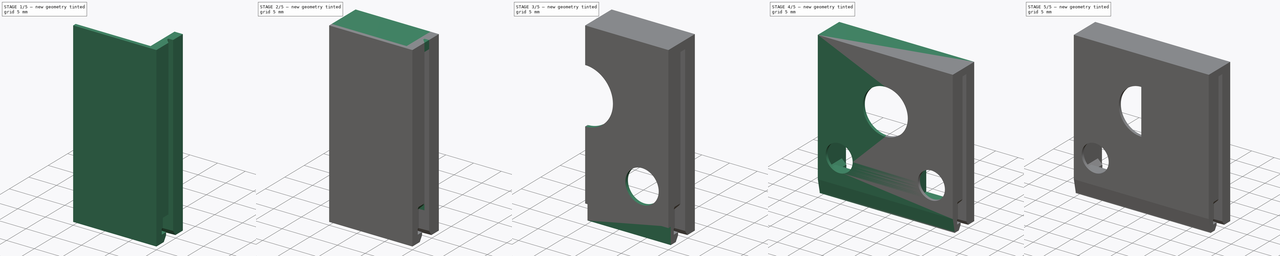
[diagram: build sequence overview — one tinted view per stage of 5, left to right]
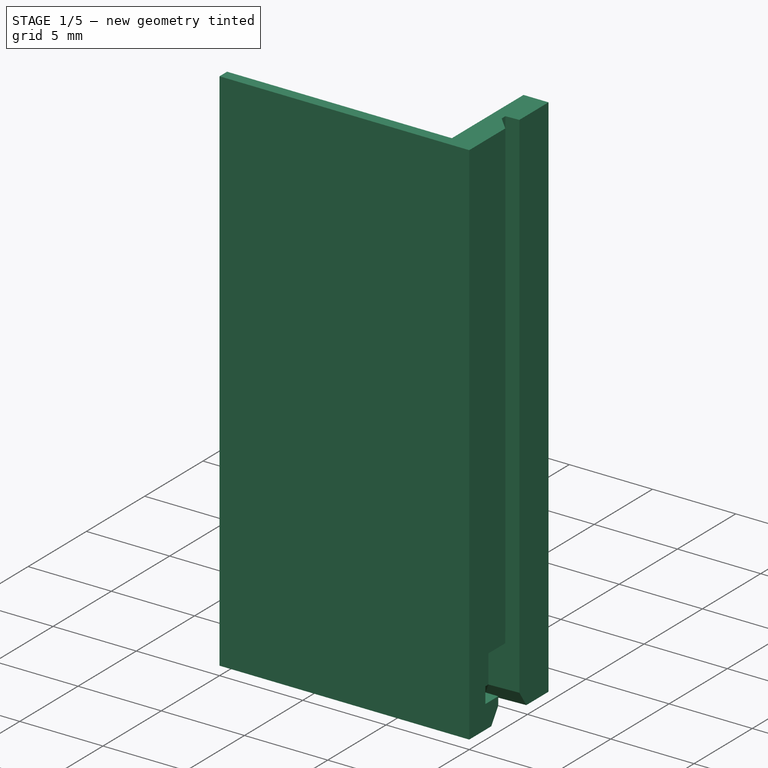
[diagram: stage 1 of 5 — iso view after this stage's code; geometry added in this stage tinted green]
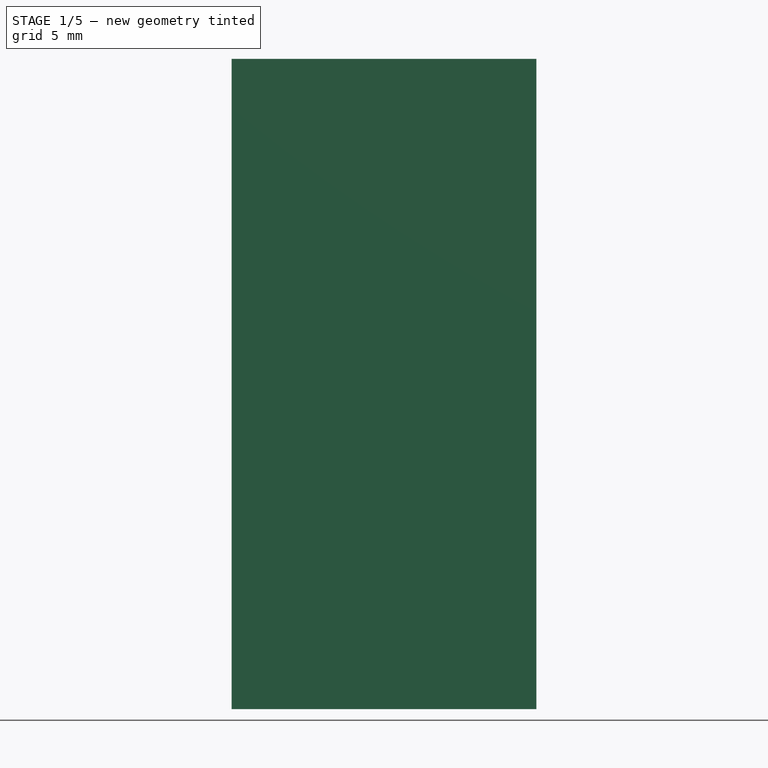
[diagram: stage 1 of 5 — front view after this stage's code; geometry added in this stage tinted green]
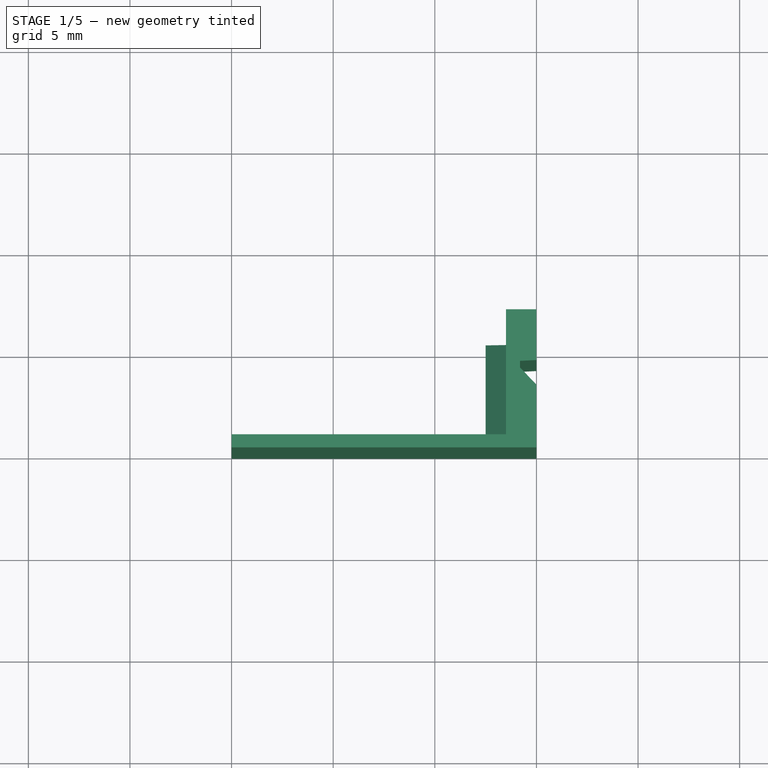
[diagram: stage 1 of 5 — top view after this stage's code; geometry added in this stage tinted green]
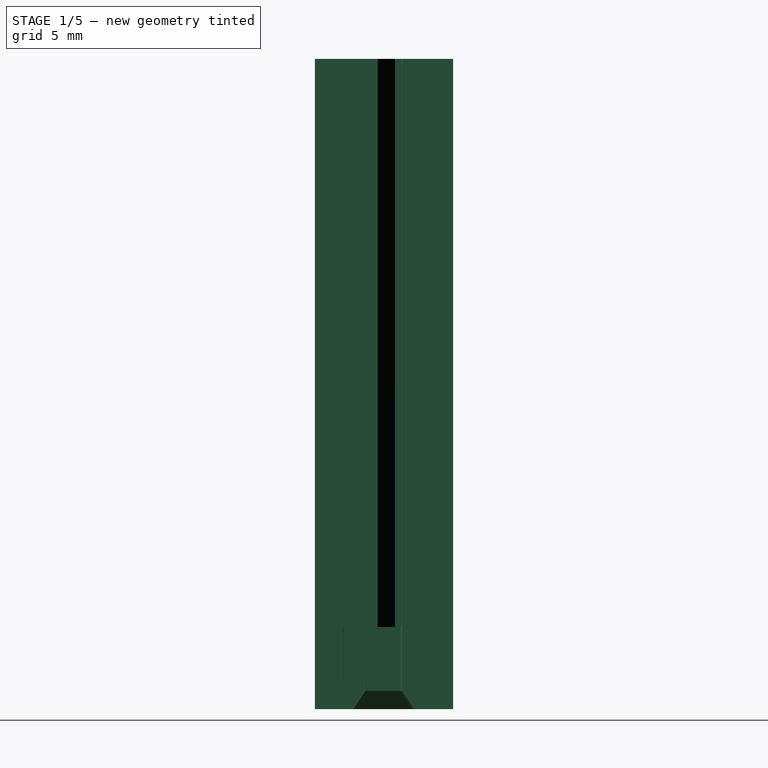
[diagram: stage 1 of 5 — right view after this stage's code; geometry added in this stage tinted green]
FCSTD DOCUMENT  (FreeCAD 1.0R39285 (Git))
Label: fw-ce-case
License: All rights reserved
LicenseURL: http://en.wikipedia.org/wiki/All_rights_reserved
objects: Part::Feature×33, App::Part×22, Sketcher::SketchObject×18, PartDesign::Pocket×10, PartDesign::Pad×9, PartDesign::Fillet×5, PartDesign::Chamfer×3, PartDesign::Plane×2, PartDesign::Mirrored×1, PartDesign::Body×1
note: 155 computed .brp shape members not serialized (recipe doc carries the construction recipe); baked Part::Feature solids carry a one-line shape summary decoded from their .brp

FEATURE [Sketcher::SketchObject] Sketch
  ArcFitTolerance = 1e-06
  AttachmentSupport = -> [XY_Plane]
  FullyConstrained = true
  MakeInternals = false
  MapMode = 5
  sketch-geometry (10):
    g0: LineSegment StartX=15 StartY=0 StartZ=0 EndX=15 EndY=3.09 EndZ=0
    g1: LineSegment StartX=15 StartY=3.09 StartZ=0 EndX=14.19 EndY=3.94 EndZ=0
    g2: LineSegment StartX=14.19 StartY=3.94 StartZ=0 EndX=14.19 EndY=4.26 EndZ=0
    g3: LineSegment StartX=14.19 StartY=4.26 StartZ=0 EndX=15 EndY=4.3 EndZ=0
    g4: LineSegment StartX=15 StartY=4.3 StartZ=0 EndX=15 EndY=6.8 EndZ=0
    g5: LineSegment StartX=15 StartY=6.8 StartZ=0 EndX=13.5 EndY=6.8 EndZ=0
    g6: LineSegment StartX=13.5 StartY=6.8 StartZ=0 EndX=13.5 EndY=0.65 EndZ=0
    g7: LineSegment StartX=13.5 StartY=0.65 StartZ=0 EndX=0 EndY=0.65 EndZ=0
    g8: LineSegment StartX=0 StartY=0 StartZ=0 EndX=15 EndY=0 EndZ=0
    g9: LineSegment StartX=0 StartY=0.65 StartZ=0 EndX=0 EndY=0 EndZ=0
  constraints (30):
    c: PointOnObject(g0,g-1)
    c: Coincident(g1,g0)
    c: Coincident(g2,g1)
    c: Vertical(g2)
    c: Coincident(g3,g2)
    c: Coincident(g5,g4)
    c: Horizontal(g5)
    c: Coincident(g6,g5)
    c: Vertical(g6)
    c: Coincident(g7,g6)
    c: PointOnObject(g7,g-2)
    c: Horizontal(g7)
    c: PointOnObject(g8,g-2)
    c: Coincident(g8,g0)
    c: Horizontal(g8)
    c: DistanceX(g5,g5) = 1.5
    c: DistanceX(g8,g8) = 15
    c: DistanceY(g-1,g0) = 3.09
    c: DistanceY(g-1,g1) = 3.94
    c: Perpendicular(g4,g8)
    c: PointOnObject(g0,g4)
    c: DistanceY(g-1,g2) = 4.26
    c: DistanceY(g-1,g3) = 4.3
    c: DistanceY(g-1,g4) = 6.8
    c: DistanceX(g-1,g1) = 14.19
    c: Vertical(g0)
    c: Coincident(g3,g4)
    c: DistanceY(g-1,g6) = 0.65
    c: Coincident(g9,g7)
    c: Coincident(g9,g8)
FEATURE [PartDesign::Pad] Pad
  Direction = (0,0,1)
  Length = 32
  Length2 = 10
  Profile = -> Sketch
  ReferenceAxis = -> Sketch [N_Axis]
  Suppressed = false
  Type = 0
FEATURE [Sketcher::SketchObject] Sketch001
  ArcFitTolerance = 1e-06
  AttachmentSupport = -> [XZ_Plane]
  ExternalGeometry = -> [Pad]
  FullyConstrained = false
  MakeInternals = false
  MapMode = 5
  Placement = pos=(0,0,0) rot=(1,0,0;1.5708rad)
  sketch-geometry (5):
    g0: LineSegment StartX=12.5 StartY=0 StartZ=0 EndX=12.5 EndY=4.5 EndZ=0
    g1: LineSegment StartX=12.5 StartY=4.5 StartZ=0 EndX=13.5 EndY=5.5 EndZ=0
    g2: LineSegment StartX=13.5 StartY=5.5 StartZ=0 EndX=15 EndY=5.5 EndZ=0
    g3: LineSegment StartX=15 StartY=5.5 StartZ=0 EndX=15 EndY=0 EndZ=0
    g4: LineSegment StartX=15 StartY=0 StartZ=0 EndX=12.5 EndY=0 EndZ=0
  constraints (13):
    c: Vertical(g0)
    c: Coincident(g1,g0)
    c: Coincident(g2,g1)
    c: PointOnObject(g2,g-3)
    c: Coincident(g3,g-3)
    c: Coincident(g4,g3)
    c: Horizontal(g4)
    c: Coincident(g3,g2)
    c: DistanceY(g-1,g2) = 5.5
    c: PointOnObject(g1,g-4)
    c: DistanceX(g-1,g0) = 12.5
    c: DistanceY(g-1,g0) = 4.5
    c: Coincident(g4,g0)
FEATURE [PartDesign::Pad] Pad001
  BaseFeature = -> Pad
  Direction = (0,-1,2e-16)
  Length = 5.5
  Length2 = 10
  Profile = -> Sketch001
  ReferenceAxis = -> Sketch001 [N_Axis]
  Reversed = true
  Suppressed = false
  Type = 0
FEATURE [PartDesign::Plane] DatumPlane
  AttachmentOffset = pos=(0,0,13.2) rot=(0,0,1;0rad)
  AttachmentSupport = -> [YZ_Plane]
  Length = 60.6771
  MapMode = 5
  Placement = pos=(13.2,0,0) rot=(0.57735,0.57735,0.57735;2.0944rad)
  ResizeMode = 0
  Width = 67.6771
FEATURE [Sketcher::SketchObject] Sketch002
  ArcFitTolerance = 1e-06
  AttachmentSupport = -> [DatumPlane]
  FullyConstrained = true
  MakeInternals = false
  MapMode = 5
  Placement = pos=(13.2,0,0) rot=(0.57735,0.57735,0.57735;2.0944rad)
  sketch-geometry (4):
    g0: LineSegment StartX=4.2 StartY=4.05 StartZ=0 EndX=1.4 EndY=4.05 EndZ=0
    g1: LineSegment StartX=1.4 StartY=4.05 StartZ=0 EndX=1.4 EndY=1.4 EndZ=0
    g2: LineSegment StartX=1.4 StartY=1.4 StartZ=0 EndX=4.2 EndY=1.4 EndZ=0
    g3: LineSegment StartX=4.2 StartY=1.4 StartZ=0 EndX=4.2 EndY=4.05 EndZ=0
  constraints (12):
    c: Coincident(g0,g1)
    c: Coincident(g1,g2)
    c: Coincident(g2,g3)
    c: Coincident(g3,g0)
    c: Horizontal(g0)
    c: Horizontal(g2)
    c: Vertical(g1)
    c: Vertical(g3)
    c: DistanceY(g-1,g0) = 4.05
    c: DistanceX(g2,g2) = 2.8
    c: DistanceY(g-1,g1) = 1.4
    c: DistanceX(g-1,g1) = 1.4
FEATURE [Sketcher::SketchObject] Sketch003
  ArcFitTolerance = 1e-06
  AttachmentSupport = -> [Pad001]
  ExternalGeometry = -> [Pad001]
  FullyConstrained = true
  MakeInternals = false
  MapMode = 5
  Placement = pos=(15,0,0) rot=(0.57735,0.57735,0.57735;2.0944rad)
  sketch-geometry (4):
    g0: LineSegment StartX=1.387 StartY=1.387 StartZ=0 EndX=4.3 EndY=1.387 EndZ=0
    g1: LineSegment StartX=4.3 StartY=1.387 StartZ=0 EndX=4.3 EndY=5.5 EndZ=0
    g2: LineSegment StartX=4.3 StartY=5.5 StartZ=0 EndX=1.387 EndY=5.5 EndZ=0
    g3: LineSegment StartX=1.387 StartY=5.5 StartZ=0 EndX=1.387 EndY=1.387 EndZ=0
  constraints (11):
    c: Coincident(g0,g1)
    c: Coincident(g1,g2)
    c: Coincident(g2,g3)
    c: Coincident(g3,g0)
    c: Horizontal(g0)
    c: Horizontal(g2)
    c: Vertical(g1)
    c: Vertical(g3)
    c: DistanceX(g-1,g0) = 1.387
    c: DistanceY(g-1,g0) = 1.387
    c: Coincident(g1,g-3)
FEATURE [PartDesign::Pocket] Pocket
  BaseFeature = -> Pad001
  Direction = (0,-2e-16,-1)
  Length = 5
  Length2 = 5
  Profile = -> Pad001 [Face11]
  Suppressed = false
  Type = 1
FEATURE [PartDesign::Plane] DatumPlane001
  AttachmentOffset = pos=(0,0,-1.4) rot=(0,0,1;0rad)
  AttachmentSupport = -> [Pocket]
  Length = 60
  MapMode = 5
  Placement = pos=(0,0,1.4) rot=(1,0,0;3.14159rad)
  ResizeMode = 0
  Width = 60
FEATURE [Sketcher::SketchObject] Sketch004
  ArcFitTolerance = 1e-06
  AttachmentSupport = -> [DatumPlane001]
  ExternalGeometry = -> [Pocket]
  FullyConstrained = true
  MakeInternals = false
  MapMode = 5
  Placement = pos=(0,0,1.4) rot=(1,0,0;3.14159rad)
  sketch-geometry (4):
    g0: LineSegment StartX=15 StartY=-4.3 StartZ=0 EndX=13.2 EndY=-4.21111 EndZ=0
    g1: LineSegment StartX=13.2 StartY=-4.21111 StartZ=0 EndX=13.2 EndY=-1.41 EndZ=0
    g2: LineSegment StartX=13.2 StartY=-1.41 StartZ=0 EndX=15 EndY=-1.39 EndZ=0
    g3: LineSegment StartX=15 StartY=-1.39 StartZ=0 EndX=15 EndY=-4.3 EndZ=0
  constraints (11):
    c: Coincident(g0,g-3)
    c: Coincident(g1,g0)
    c: Vertical(g1)
    c: Coincident(g2,g1)
    c: Coincident(g3,g2)
    c: Vertical(g3)
    c: Coincident(g-3,g3)
    c: DistanceY(g2,g-1) = 1.39
    c: DistanceY(g1,g2) = 0.02
    c: Parallel(g0,g-3)
    c: DistanceX(g-1,g0) = 13.2
FEATURE [PartDesign::Pocket] Pocket001
  BaseFeature = -> Pocket
  Direction = (0,0,1)
  Length = 2.65
  Length2 = 5
  Profile = -> Sketch004
  ReferenceAxis = -> Sketch004 [N_Axis]
  Suppressed = false
  Type = 0
FEATURE [Sketcher::SketchObject] Sketch005
  ArcFitTolerance = 1e-06
  AttachmentSupport = -> [Pocket001]
  ExternalGeometry = -> [Pocket001]
  FullyConstrained = true
  MakeInternals = false
  MapMode = 5
  Placement = pos=(0,0,1.4) rot=(0,0,1;0rad)
  sketch-geometry (4):
    g0: LineSegment StartX=15 StartY=2.49 StartZ=0 EndX=15 EndY=4.3 EndZ=0
    g1: LineSegment StartX=15 StartY=4.3 StartZ=0 EndX=13.2 EndY=4.21111 EndZ=0
    g2: LineSegment StartX=13.2 StartY=4.21111 StartZ=0 EndX=13.2 EndY=2.50257 EndZ=0
    g3: LineSegment StartX=13.2 StartY=2.50257 StartZ=0 EndX=15 EndY=2.49 EndZ=0
  constraints (10):
    c: Coincident(g0,g1)
    c: Coincident(g1,g2)
    c: Coincident(g2,g3)
    c: Coincident(g3,g0)
    c: Vertical(g0)
    c: Vertical(g2)
    c: Coincident(g1,g-5)
    c: Coincident(g0,g-4)
    c: DistanceY(g-3,g0) = 1.1
    c: Angle(g0,g3) = 1.56382
FEATURE [PartDesign::Pocket] Pocket002
  BaseFeature = -> Pocket001
  Direction = (0,0,-1)
  Length = 5
  Length2 = 5
  Profile = -> Sketch005
  ReferenceAxis = -> Sketch005 [N_Axis]
  Suppressed = false
  Type = 1
FEATURE [PartDesign::Chamfer] Chamfer
  Angle = 45
  Base = -> Pocket002 [Edge12,Edge39,Edge15,Edge40]
  BaseFeature = -> Pocket002
  ChamferType = 1
  FlipDirection = false
  Size = 0.6
  Size2 = 0.9
  SupportTransform = false
  Suppressed = false
  UseAllEdges = false
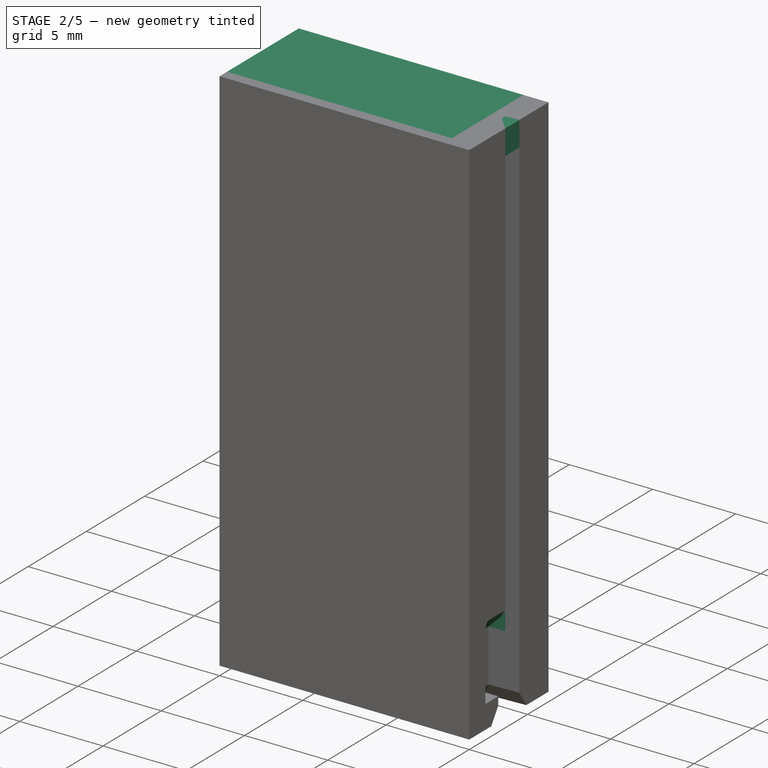
[diagram: stage 2 of 5 — iso view after this stage's code; geometry added in this stage tinted green]
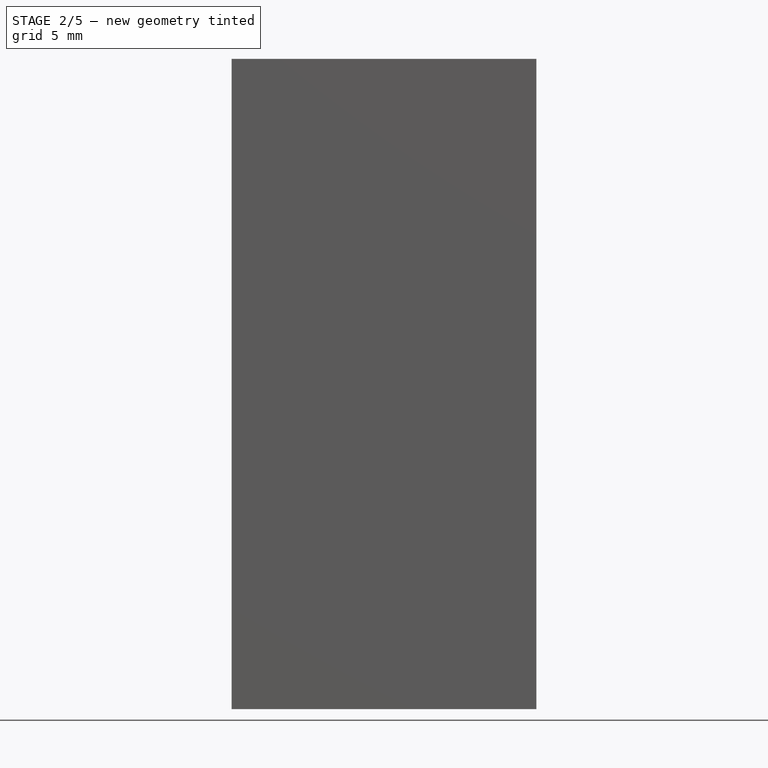
[diagram: stage 2 of 5 — front view after this stage's code; geometry added in this stage tinted green]
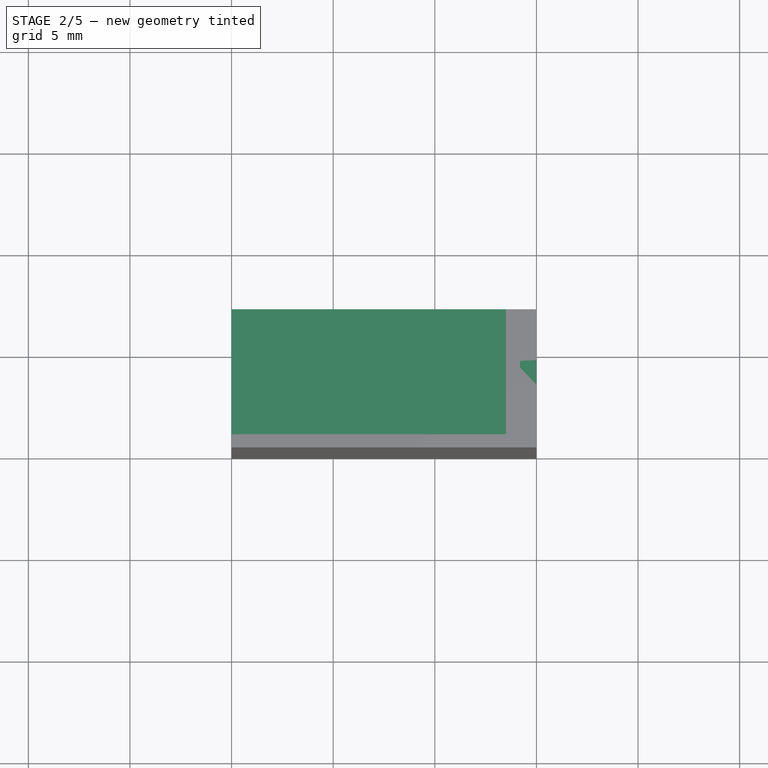
[diagram: stage 2 of 5 — top view after this stage's code; geometry added in this stage tinted green]
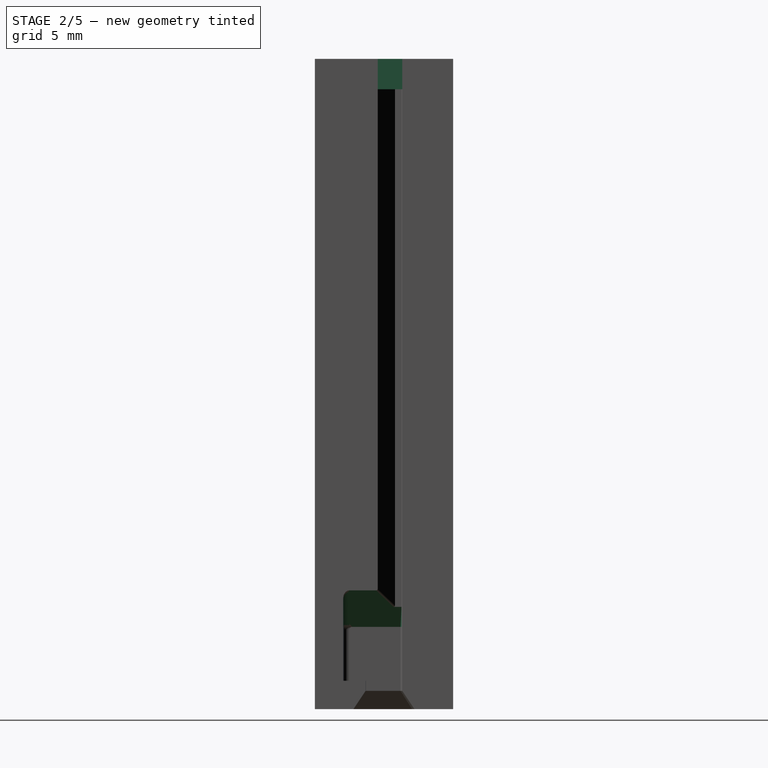
[diagram: stage 2 of 5 — right view after this stage's code; geometry added in this stage tinted green]
FEATURE [Sketcher::SketchObject] Sketch006
  ArcFitTolerance = 1e-06
  AttachmentSupport = -> [Chamfer]
  ExternalGeometry = -> [Chamfer]
  FullyConstrained = true
  MakeInternals = false
  MapMode = 5
  Placement = pos=(0.0172942,1.55647,0) rot=(0.003928,0.707101,0.707101;3.13374rad)
  sketch-geometry (3):
    g0: LineSegment StartX=-14.9836 StartY=4.05 StartZ=0 EndX=-14.9836 EndY=5.84384 EndZ=0
    g1: LineSegment StartX=-14.9836 StartY=5.84384 StartZ=0 EndX=-13.1835 EndY=4.05 EndZ=0
    g2: LineSegment StartX=-14.9836 StartY=4.05 StartZ=0 EndX=-13.1835 EndY=4.05 EndZ=0
  constraints (7):
    c: Coincident(g0,g-4)
    c: Vertical(g0)
    c: Coincident(g1,g0)
    c: Coincident(g1,g-4)
    c: Angle(g1,g-4) = 0.783653
    c: Coincident(g2,g0)
    c: Coincident(g2,g1)
FEATURE [PartDesign::Pocket] Pocket003
  BaseFeature = -> Chamfer
  Direction = (0,1,0)
  Length = 0
  Length2 = 5
  Profile = -> Sketch006
  ReferenceAxis = -> Chamfer [Edge34]
  Reversed = true
  Suppressed = false
  Type = 3
  UpToFace = -> Chamfer [Face30]
FEATURE [PartDesign::Fillet] Fillet
  Base = -> Pocket003 [Edge20,Edge17]
  BaseFeature = -> Pocket003
  Radius = 0.3
  SupportTransform = false
  Suppressed = false
  UseAllEdges = false
FEATURE [PartDesign::Fillet] Fillet001
  Base = -> Fillet [Edge44]
  BaseFeature = -> Fillet
  Radius = 0.1
  SupportTransform = false
  Suppressed = false
  UseAllEdges = false
FEATURE [Sketcher::SketchObject] Sketch009
  ArcFitTolerance = 1e-06
  AttachmentSupport = -> [Fillet001]
  ExternalGeometry = -> [Fillet001]
  FullyConstrained = true
  MakeInternals = false
  MapMode = 5
  Placement = pos=(0,0,32) rot=(0,0,1;0rad)
  sketch-geometry (4):
    g0: LineSegment StartX=15 StartY=6.8 StartZ=0 EndX=0 EndY=6.8 EndZ=0
    g1: LineSegment StartX=0 StartY=6.8 StartZ=0 EndX=0 EndY=0 EndZ=0
    g2: LineSegment StartX=0 StartY=0 StartZ=0 EndX=15 EndY=0 EndZ=0
    g3: LineSegment StartX=15 StartY=0 StartZ=0 EndX=15 EndY=6.8 EndZ=0
  constraints (10):
    c: Coincident(g0,g1)
    c: Coincident(g1,g2)
    c: Coincident(g2,g3)
    c: Coincident(g3,g0)
    c: Horizontal(g0)
    c: Horizontal(g2)
    c: Vertical(g1)
    c: Vertical(g3)
    c: Coincident(g0,g-3)
    c: Coincident(g1,g-1)
FEATURE [PartDesign::Pad] Pad005
  BaseFeature = -> Fillet001
  Direction = (0,0,1)
  Length = 1.5
  Length2 = 10
  Profile = -> Sketch009
  ReferenceAxis = -> Sketch009 [N_Axis]
  Reversed = true
  Suppressed = false
  Type = 0
FEATURE [Sketcher::SketchObject] Sketch010
  ArcFitTolerance = 1e-06
  AttachmentSupport = -> [Pad005]
  ExternalGeometry = -> [Pad005]
  FullyConstrained = true
  MakeInternals = false
  MapMode = 5
  Placement = pos=(0,0,0) rot=(1,0,0;3.14159rad)
  sketch-geometry (10):
    g0: LineSegment StartX=13.5 StartY=-6.8 StartZ=0 EndX=13.5 EndY=-5.5 EndZ=0
    g1: LineSegment StartX=13.5 StartY=-5.5 StartZ=0 EndX=12.5 EndY=-5.5 EndZ=0
    g2: LineSegment StartX=0 StartY=-6.8 StartZ=0 EndX=13.5 EndY=-6.8 EndZ=0
    g3: LineSegment StartX=0 StartY=0 StartZ=0 EndX=12.5 EndY=0 EndZ=0
    g4: LineSegment StartX=12.5 StartY=0 StartZ=0 EndX=12.5 EndY=-5.5 EndZ=0
    g5: LineSegment StartX=0 StartY=0 StartZ=0 EndX=0 EndY=-2.15 EndZ=0
    g6: LineSegment StartX=0 StartY=-2.15 StartZ=0 EndX=3 EndY=-2.15 EndZ=0
    g7: LineSegment StartX=0 StartY=-6.8 StartZ=0 EndX=0 EndY=-4.95 EndZ=0
    g8: LineSegment StartX=0 StartY=-4.95 StartZ=0 EndX=3 EndY=-4.95 EndZ=0
    g9: ArcOfCircle CenterX=3 CenterY=-3.55 CenterZ=0 NormalX=0 NormalY=0 NormalZ=1 AngleXU=0 Radius=1.4 StartAngle=4.71239 EndAngle=7.85398
  constraints (27):
    c: Coincident(g0,g1)
    c: Coincident(g2,g0)
    c: Vertical(g0)
    c: Horizontal(g1)
    c: Horizontal(g2)
    c: Coincident(g0,g-3)
    c: Coincident(g1,g-4)
    c: PointOnObject(g3,g-1)
    c: Coincident(g4,g3)
    c: Coincident(g4,g1)
    c: Vertical(g4)
    c: Coincident(g5,g3)
    c: PointOnObject(g5,g-2)
    c: Vertical(g5)
    c: Coincident(g6,g5)
    c: Horizontal(g6)
    c: Coincident(g7,g2)
    c: PointOnObject(g7,g-2)
    c: Vertical(g7)
    c: Coincident(g8,g7)
    c: Horizontal(g8)
    c: Tangent(g9,g6) = 1.5708
    c: Tangent(g9,g8) = -1.5708
    c: DistanceY(g7,g5) = 2.8
    c: DistanceX(g5,g6) = 3
    c: DistanceY(g5,g5) = 2.15
    c: Horizontal(g3)
FEATURE [PartDesign::Pad] Pad006
  BaseFeature = -> Pad005
  Direction = (0,0,-1)
  Length = 1.5
  Length2 = 10
  Profile = -> Sketch010
  ReferenceAxis = -> Sketch010 [N_Axis]
  Reversed = true
  Suppressed = false
  Type = 0
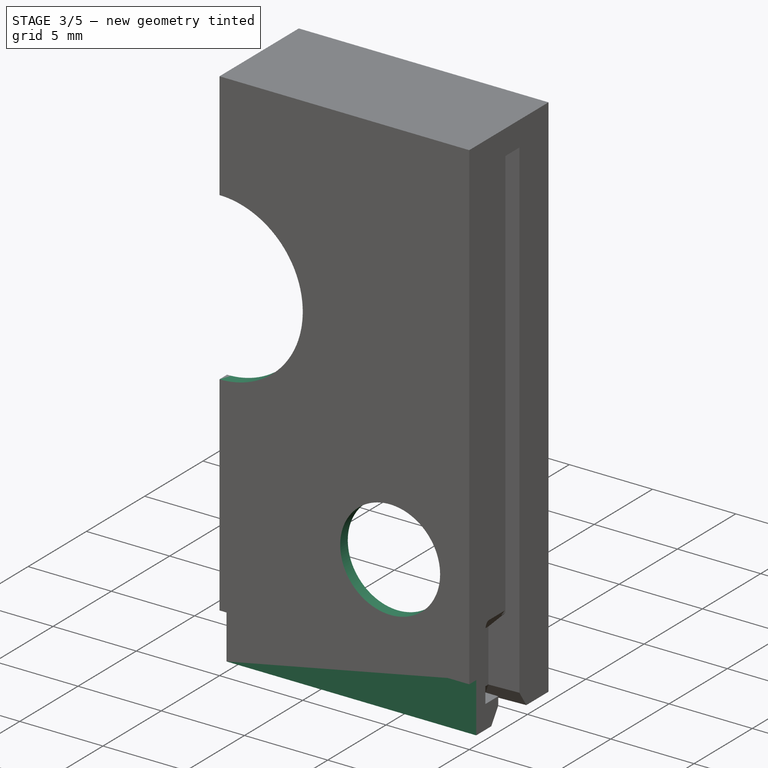
[diagram: stage 3 of 5 — iso view after this stage's code; geometry added in this stage tinted green]
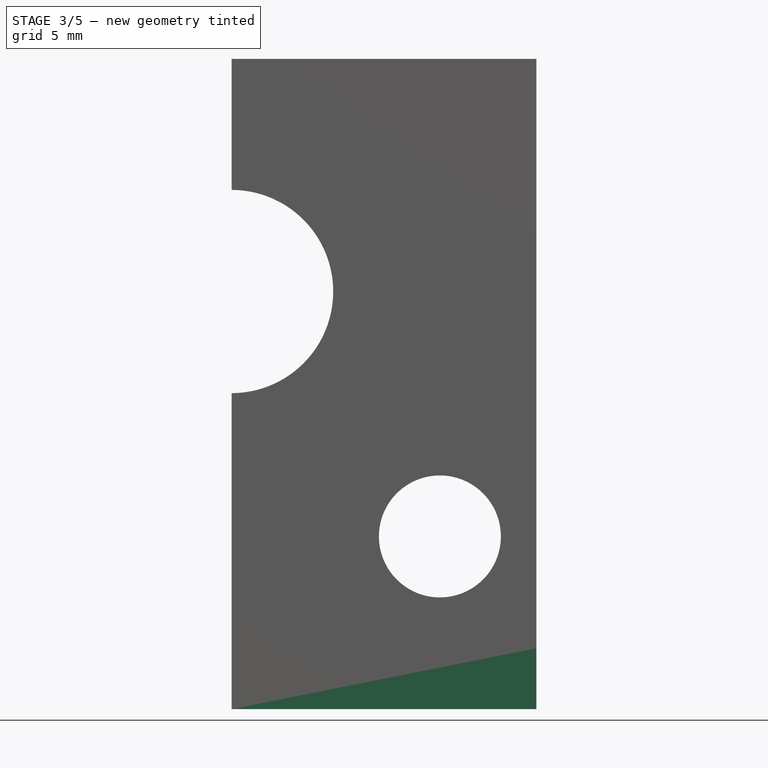
[diagram: stage 3 of 5 — front view after this stage's code; geometry added in this stage tinted green]
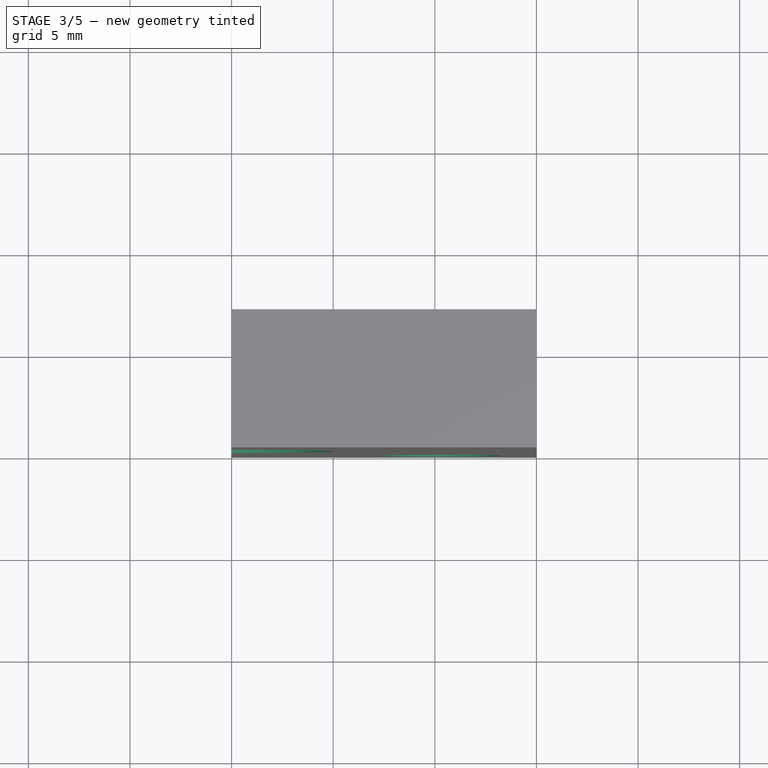
[diagram: stage 3 of 5 — top view after this stage's code; geometry added in this stage tinted green]
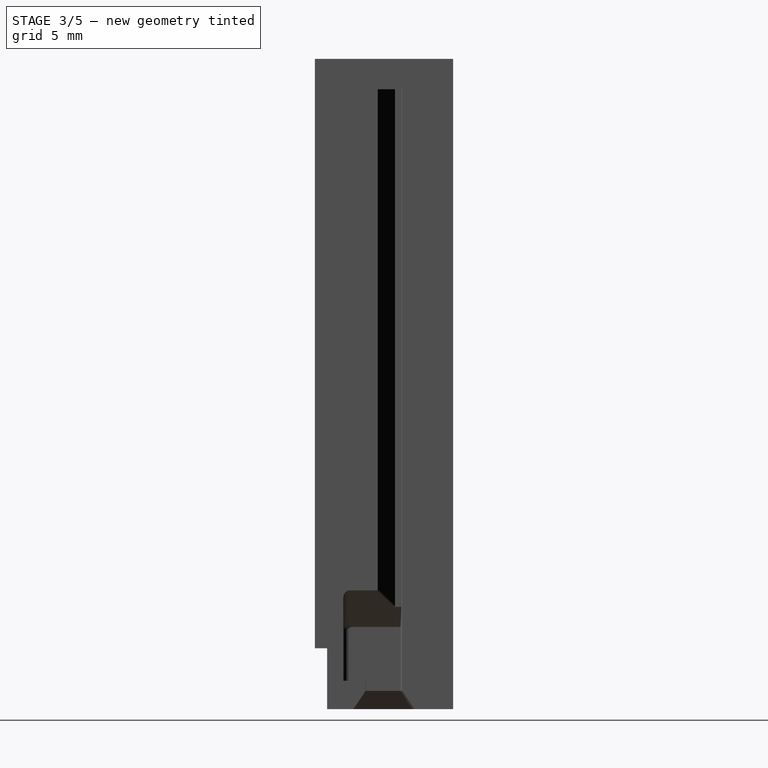
[diagram: stage 3 of 5 — right view after this stage's code; geometry added in this stage tinted green]
FEATURE [PartDesign::Fillet] Fillet002
  Base = -> Pad006 [Edge151,Edge146]
  BaseFeature = -> Pad006
  Radius = 0.5
  SupportTransform = false
  Suppressed = false
  UseAllEdges = false
FEATURE [PartDesign::Chamfer] Chamfer001
  Angle = 45
  Base = -> Fillet002 [Edge16]
  BaseFeature = -> Fillet002
  ChamferType = 0
  FlipDirection = false
  Size = 0.9
  Size2 = 1
  SupportTransform = false
  Suppressed = false
  UseAllEdges = false
FEATURE [PartDesign::Fillet] Fillet003
  Base = -> Chamfer001 [Edge48,Edge6,Edge30]
  BaseFeature = -> Chamfer001
  Radius = 0.35
  SupportTransform = false
  Suppressed = false
  UseAllEdges = false
FEATURE [Sketcher::SketchObject] Sketch011
  ArcFitTolerance = 1e-06
  FullyConstrained = true
  MakeInternals = false
  MapMode = 5
  Placement = pos=(0,0,0) rot=(1,0,0;1.5708rad)
  sketch-geometry (1):
    g0: Circle CenterX=0 CenterY=20.55 CenterZ=0 NormalX=0 NormalY=0 NormalZ=1 AngleXU=0 Radius=5
  constraints (3):
    c: PointOnObject(g0,g-2)
    c: Diameter(g0) = 10
    c: DistanceY(g-1,g0) = 20.55
FEATURE [Sketcher::SketchObject] Sketch012
  ArcFitTolerance = 1e-06
  AttachmentSupport = -> [YZ_Plane]
  FullyConstrained = true
  MakeInternals = false
  MapMode = 5
  Placement = pos=(0,0,0) rot=(0.57735,0.57735,0.57735;2.0944rad)
  sketch-geometry (4):
    g0: LineSegment StartX=0 StartY=0 StartZ=0 EndX=0.6 EndY=0 EndZ=0
    g1: LineSegment StartX=0.6 StartY=0 StartZ=0 EndX=0.6 EndY=3 EndZ=0
    g2: LineSegment StartX=0.6 StartY=3 StartZ=0 EndX=0 EndY=3 EndZ=0
    g3: LineSegment StartX=0 StartY=3 StartZ=0 EndX=0 EndY=0 EndZ=0
  constraints (11):
    c: Coincident(g0,g1)
    c: Coincident(g1,g2)
    c: Coincident(g2,g3)
    c: Coincident(g3,g0)
    c: Horizontal(g0)
    c: Horizontal(g2)
    c: Vertical(g1)
    c: Vertical(g3)
    c: Coincident(g0,g-1)
    c: DistanceY(g3,g3) = 3
    c: DistanceX(g0,g0) = 0.6
FEATURE [PartDesign::Pocket] Pocket006
  BaseFeature = -> Fillet003
  Direction = (-1,0,0)
  Length = 5
  Length2 = 5
  Midplane = true
  Profile = -> Sketch012
  ReferenceAxis = -> Sketch012 [N_Axis]
  Suppressed = false
  Type = 1
FEATURE [PartDesign::Pocket] Pocket005
  BaseFeature = -> Pocket006
  Direction = (0,1,-2e-16)
  Length = 5
  Length2 = 5
  Profile = -> Sketch011
  ReferenceAxis = -> Sketch011 [N_Axis]
  Refine = true
  Suppressed = false
  Type = 0
FEATURE [Part::Feature] Part__Feature  label="FW_EXP_1USBC_FRAME_CLIP_BC_229_"
  shape: bbox 30.43 x 6.809 x 32.02 mm, 201 faces (baked)
FEATURE [Part::Feature] Part__Feature041  label="R_0603_1608Metric016"
  shape: bbox 1.6 x 0.8 x 0.45 mm, 26 faces (baked)
FEATURE [App::Part] R_0603_1608Metric008  label="R_0603_1608Metric017"
  Group = -> [Part__Feature041]
  Origin = -> Origin027
  Placement = pos=(-8.794,-16.925,0.856) rot=(0,0,1;1.5708rad)
FEATURE [Part::Feature] Part__Feature042  label="R_0603_1608Metric018"
  shape: bbox 1.6 x 0.8 x 0.45 mm, 26 faces (baked)
FEATURE [App::Part] R_0603_1608Metric009  label="R_0603_1608Metric019"
  Group = -> [Part__Feature042]
  Origin = -> Origin028
  Placement = pos=(-0.793999,-11.5,0.856) rot=(0,0,-1;1.5708rad)
FEATURE [Part::Feature] Part__Feature043  label="C_0805_2012Metric002"
  shape: bbox 2 x 1.25 x 1.25 mm, 28 faces (baked)
FEATURE [App::Part] C_0805_2012Metric001  label="C_0805_2012Metric003"
  Group = -> [Part__Feature043]
  Origin = -> Origin029
  Placement = pos=(-5.944,-14.7,0.856) rot=(0,0,1;0rad)
FEATURE [Part::Feature] Part__Feature044  label="R_0603_1608Metric020"
  shape: bbox 1.6 x 0.8 x 0.45 mm, 26 faces (baked)
FEATURE [App::Part] R_0603_1608Metric010  label="R_0603_1608Metric021"
  Group = -> [Part__Feature044]
  Origin = -> Origin030
  Placement = pos=(12.206,-4.925,0.856) rot=(0,0,-1;1.5708rad)
FEATURE [Part::Feature] Part__Feature045  label="TSSOP_20_44x65mm_P065mm001"
  shape: bbox 6.4 x 6.5 x 1.2 mm, 336 faces (baked)
FEATURE [App::Part] TSSOP_20_4_4x6_5mm_P0_65mm001  label="TSSOP-20_4.4x6.5mm_P0.65mm001"
  Group = -> [Part__Feature045]
  Origin = -> Origin031
  Placement = pos=(8.531,-14.6875,0.856) rot=(0,0,1;1.5708rad)
FEATURE [Part::Feature] Part__Feature053  label="R_0603_1608Metric022"
  shape: bbox 1.6 x 0.8 x 0.45 mm, 26 faces (baked)
FEATURE [App::Part] R_0603_1608Metric011  label="R_0603_1608Metric023"
  Group = -> [Part__Feature053]
  Origin = -> Origin034
  Placement = pos=(-10.394,-16.925,0.856) rot=(0,0,1;1.5708rad)
FEATURE [Part::Feature] Part__Feature054  label="R_0603_1608Metric024"
  shape: bbox 1.6 x 0.8 x 0.45 mm, 26 faces (baked)
FEATURE [App::Part] R_0603_1608Metric012  label="R_0603_1608Metric025"
  Group = -> [Part__Feature054]
  Origin = -> Origin035
  Placement = pos=(2.406,-11.5,0.856) rot=(0,0,-1;1.5708rad)
FEATURE [Part::Feature] Part__Feature055  label="C_0603_1608Metric010"
  shape: bbox 1.6 x 0.8 x 0.8 mm, 28 faces (baked)
FEATURE [App::Part] C_0603_1608Metric005  label="C_0603_1608Metric011"
  Group = -> [Part__Feature055]
  Origin = -> Origin036
  Placement = pos=(3.206,-13.875,0.856) rot=(0,0,1;3.14159rad)
FEATURE [Part::Feature] Part__Feature056  label="C_0603_1608Metric012"
  shape: bbox 1.6 x 0.8 x 0.8 mm, 28 faces (baked)
FEATURE [App::Part] C_0603_1608Metric006  label="C_0603_1608Metric013"
  Group = -> [Part__Feature056]
  Origin = -> Origin037
  Placement = pos=(12.206,-1.7,0.856) rot=(0,0,1;1.5708rad)
FEATURE [Part::Feature] Part__Feature057  label="R_0603_1608Metric026"
  shape: bbox 1.6 x 0.8 x 0.45 mm, 26 faces (baked)
FEATURE [App::Part] R_0603_1608Metric013  label="R_0603_1608Metric027"
  Group = -> [Part__Feature057]
  Origin = -> Origin038
  Placement = pos=(0.806001,-11.5,0.856) rot=(0,0,-1;1.5708rad)
FEATURE [Part::Feature] Part__Feature058  label="R_0603_1608Metric028"
  shape: bbox 1.6 x 0.8 x 0.45 mm, 26 faces (baked)
FEATURE [App::Part] R_0603_1608Metric014  label="R_0603_1608Metric029"
  Group = -> [Part__Feature058]
  Origin = -> Origin039
  Placement = pos=(12.206,-8.3,0.856) rot=(0,0,-1;1.5708rad)
FEATURE [Part::Feature] Part__Feature059  label="R_0603_1608Metric030"
  shape: bbox 1.6 x 0.8 x 0.45 mm, 26 faces (baked)
FEATURE [App::Part] R_0603_1608Metric015  label="R_0603_1608Metric031"
  Group = -> [Part__Feature059]
  Origin = -> Origin040
  Placement = pos=(4.006,-11.525,0.856) rot=(0,0,-1;1.5708rad)
FEATURE [Part::Feature] Part__Feature060  label="Bosch_LGA_14_3x25mm_P05mm001"
  shape: bbox 3 x 2.5 x 0.78 mm, 78 faces (baked)
FEATURE [App::Part] Bosch_LGA_14_3x2_5mm_P0_5mm001  label="Bosch_LGA-14_3x2.5mm_P0.5mm001"
  Group = -> [Part__Feature060]
  Origin = -> Origin041
  Placement = pos=(-10.014,-12.43,0.856) rot=(0,0,1;1.5708rad)
FEATURE [Part::Feature] Part__Feature061  label="C_0603_1608Metric014"
  shape: bbox 1.6 x 0.8 x 0.8 mm, 28 faces (baked)
FEATURE [App::Part] C_0603_1608Metric007  label="C_0603_1608Metric015"
  Group = -> [Part__Feature061]
  Origin = -> Origin042
  Placement = pos=(-1.969,-13.875,0.856) rot=(0,0,1;3.14159rad)
FEATURE [Part::Feature] Part__Feature062  label="C_0603_1608Metric016"
  shape: bbox 1.6 x 0.8 x 0.8 mm, 28 faces (baked)
FEATURE [App::Part] C_0603_1608Metric008  label="C_0603_1608Metric017"
  Group = -> [Part__Feature062]
  Origin = -> Origin043
  Placement = pos=(-2.594,-11.5,0.856) rot=(0,0,1;1.5708rad)
FEATURE [Part::Feature] Part__Feature064  label="SOT_024"
  shape: bbox 2.5 x 3 x 1.2 mm, 76 faces (baked)
FEATURE [App::Part] SOT_024  label="SOT-024"
  Group = -> [Part__Feature064]
  Origin = -> Origin046
  Placement = pos=(-5.6565,-11.7,0.856) rot=(0,0,1;3.14159rad)
FEATURE [Part::Feature] Part__Feature065  label="C_0603_1608Metric018"
  shape: bbox 1.6 x 0.8 x 0.8 mm, 28 faces (baked)
FEATURE [App::Part] C_0603_1608Metric009  label="C_0603_1608Metric019"
  Group = -> [Part__Feature065]
  Origin = -> Origin047
  Placement = pos=(12.206,1.525,0.856) rot=(0,0,-1;1.5708rad)
FEATURE [Part::Feature] Part__Feature066  label="TS21-34-035-BK-260-SMT-TR v022"
  shape: bbox 3.4 x 3.4 x 1.15 mm, 129 faces (baked)
FEATURE [Part::Feature] Part__Feature067  label="TS21-34-035-BK-260-SMT-TR v023"
  shape: bbox 1.84 x 1.84 x 0.55 mm, 4 faces (baked)
FEATURE [Part::Feature] Part__Feature068  label="TS21-34-035-BK-260-SMT-TR v024"
  shape: bbox 3.115 x 3.061 x 0.699 mm, 22 faces (baked)
FEATURE [Part::Feature] Part__Feature069  label="TS21-34-035-BK-260-SMT-TR v025"
  shape: bbox 0.6925 x 0.35 x 0.15 mm, 6 faces (baked)
FEATURE [Part::Feature] Part__Feature070  label="TS21-34-035-BK-260-SMT-TR v026"
  shape: bbox 0.6925 x 0.35 x 0.15 mm, 6 faces (baked)
FEATURE [Part::Feature] Part__Feature071  label="TS21-34-035-BK-260-SMT-TR v027"
  shape: bbox 0.6925 x 0.35 x 0.15 mm, 6 faces (baked)
FEATURE [Part::Feature] Part__Feature072  label="TS21-34-035-BK-260-SMT-TR v028"
  shape: bbox 0.6925 x 0.35 x 0.15 mm, 6 faces (baked)
FEATURE [App::Part] TS21_34_035_BK_260_SMT_TR_v008  label="TS21-34-035-BK-260-SMT-TR v029"
  Group = -> [Part__Feature066,Part__Feature067,Part__Feature068,Part__Feature069,Part__Feature070,Part__Feature071,Part__Feature072]
  Origin = -> Origin048
FEATURE [App::Part] TS21_34_035_BK_260_SMT_TR002  label="TS21-34-035-BK-260-SMT-TR002"
  Group = -> [TS21_34_035_BK_260_SMT_TR_v008]
  Origin = -> Origin049
  Placement = pos=(10.006,-12.3,-0.05) rot=(1,0,0;3.14159rad)
FEATURE [Part::Feature] Part__Feature073  label="TS21-34-035-BK-260-SMT-TR v030"
  shape: bbox 3.4 x 3.4 x 1.15 mm, 129 faces (baked)
FEATURE [Part::Feature] Part__Feature074  label="TS21-34-035-BK-260-SMT-TR v031"
  shape: bbox 1.84 x 1.84 x 0.55 mm, 4 faces (baked)
FEATURE [Part::Feature] Part__Feature075  label="TS21-34-035-BK-260-SMT-TR v032"
  shape: bbox 3.115 x 3.061 x 0.699 mm, 22 faces (baked)
FEATURE [Part::Feature] Part__Feature076  label="TS21-34-035-BK-260-SMT-TR v033"
  shape: bbox 0.6925 x 0.35 x 0.15 mm, 6 faces (baked)
FEATURE [Part::Feature] Part__Feature077  label="TS21-34-035-BK-260-SMT-TR v034"
  shape: bbox 0.6925 x 0.35 x 0.15 mm, 6 faces (baked)
FEATURE [Part::Feature] Part__Feature078  label="TS21-34-035-BK-260-SMT-TR v035"
  shape: bbox 0.6925 x 0.35 x 0.15 mm, 6 faces (baked)
FEATURE [Part::Feature] Part__Feature079  label="TS21-34-035-BK-260-SMT-TR v036"
  shape: bbox 0.6925 x 0.35 x 0.15 mm, 6 faces (baked)
FEATURE [App::Part] TS21_34_035_BK_260_SMT_TR_v009  label="TS21-34-035-BK-260-SMT-TR v037"
  Group = -> [Part__Feature073,Part__Feature074,Part__Feature075,Part__Feature076,Part__Feature077,Part__Feature078,Part__Feature079]
  Origin = -> Origin050
FEATURE [App::Part] TS21_34_035_BK_260_SMT_TR003  label="TS21-34-035-BK-260-SMT-TR003"
  Group = -> [TS21_34_035_BK_260_SMT_TR_v009]
  Origin = -> Origin051
  Placement = pos=(-9.994,-12.3,-0.05) rot=(1,0,0;3.14159rad)
FEATURE [Part::Feature] Part__Feature080  label="FWPSPJoystick_PCB001"
  shape: bbox 26.05 x 24.25 x 0.806 mm, 281 faces (baked)
FEATURE [App::Part] PCB3D_002  label="PCB3D 002"
  Group = -> [R_0603_1608Metric008,R_0603_1608Metric009,C_0805_2012Metric001,R_0603_1608Metric010,TSSOP_20_4_4x6_5mm_P0_65mm001,R_0603_1608Metric011,R_0603_1608Metric012,C_0603_1608Metric005,C_0603_1608Metric006,R_0603_1608Metric013,R_0603_1608Metric014,R_0603_1608Metric015,Bosch_LGA_14_3x2_5mm_P0_5mm001,C_0603_1608Metric007,C_0603_1608Metric008,SOT_024,C_0603_1608Metric009,TS21_34_035_BK_260_SMT_TR002,+2 more]
  Origin = -> Origin052
  Placement = pos=(0.25,3.06,-11.2) rot=(0,0.71,0.71;3.14159rad)
FEATURE [Sketcher::SketchObject] Sketch013
  ArcFitTolerance = 1e-06
  AttachmentSupport = -> [Pocket005]
  FullyConstrained = true
  MakeInternals = false
  MapMode = 5
  Placement = pos=(0,8e-16,0) rot=(1,0,0;1.5708rad)
  sketch-geometry (1):
    g0: Circle CenterX=10.25 CenterY=8.5 CenterZ=0 NormalX=0 NormalY=0 NormalZ=1 AngleXU=0 Radius=3
  constraints (3):
    c: DistanceY(g-1,g0) = 8.5
    c: DistanceX(g-1,g0) = 10.25
    c: Diameter(g0) = 6
FEATURE [PartDesign::Pocket] Pocket007
  BaseFeature = -> Pocket005
  Direction = (0,1,-2e-16)
  Length = 5
  Length2 = 5
  Profile = -> Sketch013
  ReferenceAxis = -> Sketch013 [N_Axis]
  Refine = true
  Suppressed = false
  Type = 1
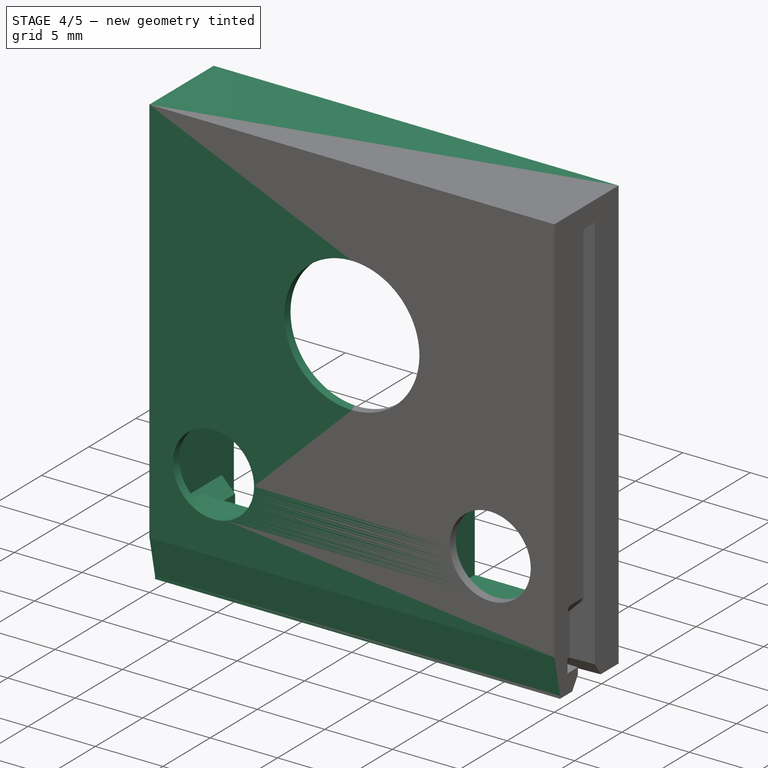
[diagram: stage 4 of 5 — iso view after this stage's code; geometry added in this stage tinted green]
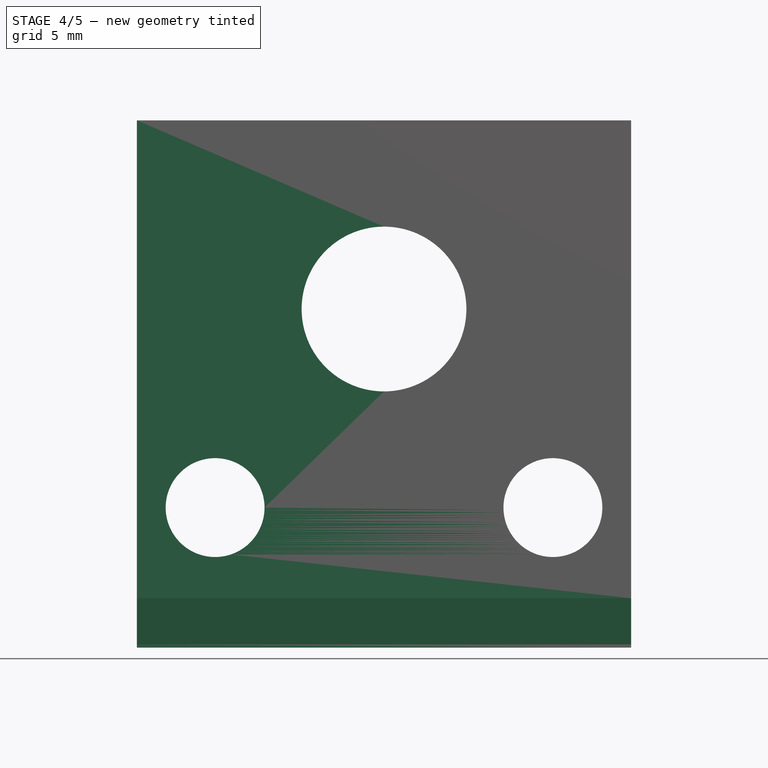
[diagram: stage 4 of 5 — front view after this stage's code; geometry added in this stage tinted green]
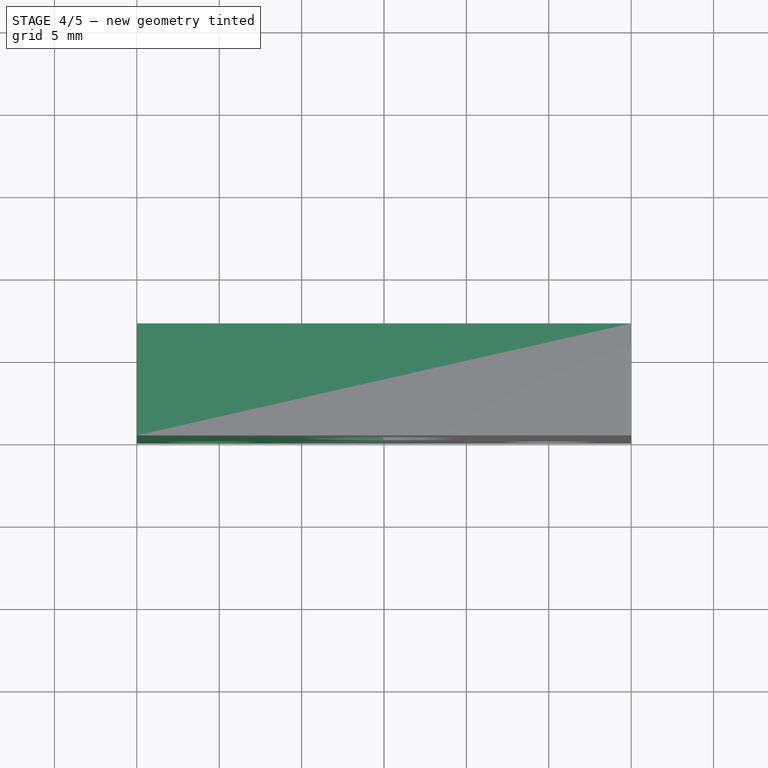
[diagram: stage 4 of 5 — top view after this stage's code; geometry added in this stage tinted green]
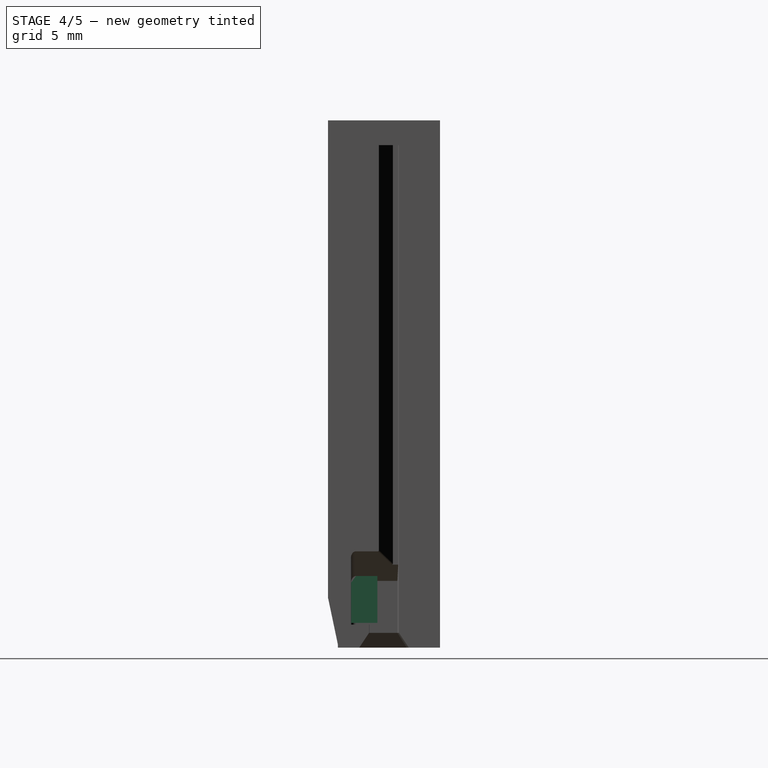
[diagram: stage 4 of 5 — right view after this stage's code; geometry added in this stage tinted green]
FEATURE [Sketcher::SketchObject] Sketch014
  ArcFitTolerance = 1e-06
  AttachmentSupport = -> [Pocket007]
  ExternalGeometry = -> [Pocket007]
  FullyConstrained = true
  MakeInternals = false
  MapMode = 5
  Placement = pos=(0,0.65,0) rot=(0,0.707107,0.707107;3.14159rad)
  sketch-geometry (15):
    g0: LineSegment StartX=-13.5 StartY=11.75 StartZ=0 EndX=-7 EndY=11.75 EndZ=0
    g1: LineSegment StartX=-7 StartY=5.25 StartZ=0 EndX=-13.5 EndY=5.25 EndZ=0
    g2: LineSegment [constr] StartX=-13.5 StartY=5.25 StartZ=0 EndX=-13.5 EndY=11.75 EndZ=0
    g3: LineSegment StartX=-7 StartY=5.25 StartZ=0 EndX=-7 EndY=11.75 EndZ=0
    g4: LineSegment [constr] StartX=-7 StartY=5.25 StartZ=0 EndX=-13.5 EndY=11.75 EndZ=0
    g5: LineSegment StartX=-13.5 StartY=11.75 StartZ=0 EndX=-13.5 EndY=15.5 EndZ=0
    g6: LineSegment StartX=-10.1 StartY=15.5 StartZ=0 EndX=-5.6 EndY=11 EndZ=0
    g7: LineSegment StartX=-5.6 StartY=11 StartZ=0 EndX=-5.6 EndY=1.5 EndZ=0
    g8: LineSegment StartX=-5.6 StartY=1.5 StartZ=0 EndX=-13.5 EndY=1.5 EndZ=0
    g9: LineSegment StartX=-13.5 StartY=1.5 StartZ=0 EndX=-13.5 EndY=5.25 EndZ=0
    g10: Circle [constr] CenterX=-10.45 CenterY=13.45 CenterZ=0 NormalX=0 NormalY=0 NormalZ=1 AngleXU=0 Radius=0.9
    g11: LineSegment [constr] StartX=-13.5 StartY=15.5 StartZ=0 EndX=-10.1 EndY=15.5 EndZ=0
    g12: LineSegment StartX=-10.1 StartY=15.5 StartZ=0 EndX=-10.1 EndY=30.5 EndZ=0
    g13: LineSegment StartX=-10.1 StartY=30.5 StartZ=0 EndX=-13.5 EndY=30.5 EndZ=0
    g14: LineSegment StartX=-13.5 StartY=30.5 StartZ=0 EndX=-13.5 EndY=15.5 EndZ=0
  constraints (41):
    c: PointOnObject(g0,g-4)
    c: Horizontal(g1)
    c: Coincident(g2,g0)
    c: Horizontal(g0)
    c: Vertical(g3)
    c: Coincident(g1,g2)
    c: PointOnObject(g1,g-4)
    c: Equal(g1,g3)
    c: Coincident(g4,g3)
    c: Coincident(g4,g0)
    c: Symmetric(g4,g4,g-3)
    c: Coincident(g1,g3)
    c: Coincident(g0,g3)
    c: Coincident(g5,g0)
    c: PointOnObject(g5,g-4)
    c: Coincident(g7,g6)
    c: Vertical(g7)
    c: PointOnObject(g7,g-5)
    c: Coincident(g8,g7)
    c: Horizontal(g8)
    c: Coincident(g9,g8)
    c: Coincident(g9,g1)
    c: Vertical(g9)
    c: Angle(g6,g7) = 2.35619
    c: DistanceX(g8,g8) = 7.9
    c: DistanceY(g7,g7) = 9.5
    c: DistanceY(g8,g5) = 14
    c: DistanceY(g-4,g10) = 7.95
    c: DistanceX(g-4,g10) = 3.05
    c: Diameter(g10) = 1.8
    c: Coincident(g11,g12)
    c: Coincident(g12,g13)
    c: Coincident(g13,g14)
    c: Coincident(g14,g11)
    c: Horizontal(g11)
    c: Horizontal(g13)
    c: Vertical(g12)
    c: Vertical(g14)
    c: Coincident(g11,g5)
    c: PointOnObject(g12,g-6)
    c: Coincident(g6,g11)
FEATURE [PartDesign::Pad] Pad007
  BaseFeature = -> Pocket007
  Direction = (0,1,-2e-16)
  Length = 2.35
  Length2 = 10
  Profile = -> Sketch014
  ReferenceAxis = -> Sketch014 [N_Axis]
  Refine = true
  Suppressed = false
  Type = 0
FEATURE [Sketcher::SketchObject] Sketch015
  ArcFitTolerance = 1e-06
  AttachmentSupport = -> [Pad007]
  ExternalGeometry = -> [Pad007]
  FullyConstrained = true
  MakeInternals = false
  MapMode = 5
  Placement = pos=(0,0.65,0) rot=(0,0.707107,0.707107;3.14159rad)
  sketch-geometry (4):
    g0: LineSegment StartX=-13.5 StartY=26.65 StartZ=0 EndX=-9.3 EndY=26.65 EndZ=0
    g1: LineSegment StartX=-9.3 StartY=26.65 StartZ=0 EndX=-5.45 EndY=30.5 EndZ=0
    g2: LineSegment StartX=-5.45 StartY=30.5 StartZ=0 EndX=-13.5 EndY=30.5 EndZ=0
    g3: LineSegment StartX=-13.5 StartY=30.5 StartZ=0 EndX=-13.5 EndY=26.65 EndZ=0
  constraints (12):
    c: PointOnObject(g0,g-3)
    c: Horizontal(g0)
    c: Coincident(g1,g0)
    c: PointOnObject(g1,g-4)
    c: Coincident(g2,g1)
    c: Horizontal(g2)
    c: Coincident(g3,g2)
    c: Coincident(g3,g0)
    c: Vertical(g3)
    c: Angle(g1,g0) = 2.35619
    c: DistanceY(g3,g3) = 3.85
    c: DistanceX(g2,g2) = 8.05
FEATURE [PartDesign::Pad] Pad008
  BaseFeature = -> Pad007
  Direction = (0,1,-2e-16)
  Length = 10
  Length2 = 10
  Profile = -> Sketch015
  ReferenceAxis = -> Sketch015 [N_Axis]
  Refine = true
  Suppressed = false
  Type = 3
  UpToFace = -> Pad007 [Face8]
FEATURE [PartDesign::Mirrored] Mirrored
  BaseFeature = -> Pad008
  MirrorPlane = -> YZ_Plane
  Refine = true
  Suppressed = false
  TransformMode = 1
FEATURE [Sketcher::SketchObject] Sketch016
  ArcFitTolerance = 1e-06
  AttachmentSupport = -> [Mirrored]
  FullyConstrained = true
  MakeInternals = false
  MapMode = 5
  Placement = pos=(0,3,-7e-16) rot=(0,0.707107,0.707107;3.14159rad)
  sketch-geometry (3):
    g0: Circle CenterX=-6.65 CenterY=3.61 CenterZ=0 NormalX=0 NormalY=0 NormalZ=1 AngleXU=0 Radius=0.86
    g1: Circle CenterX=-10.53 CenterY=13.35 CenterZ=0 NormalX=0 NormalY=0 NormalZ=1 AngleXU=0 Radius=0.86
    g2: Circle CenterX=8.92 CenterY=12.47 CenterZ=0 NormalX=0 NormalY=0 NormalZ=1 AngleXU=0 Radius=0.86
  constraints (9):
    c: DistanceY(g-1,g2) = 12.47
    c: DistanceX(g-1,g2) = 8.92
    c: DistanceX(g0,g-1) = 6.65
    c: DistanceY(g-1,g0) = 3.61
    c: DistanceY(g-1,g1) = 13.35
    c: DistanceX(g1,g-1) = 10.53
    c: Equal(g0,g1)
    c: Equal(g1,g2)
    c: Diameter(g0) = 1.72
FEATURE [PartDesign::Pocket] Pocket008
  BaseFeature = -> Mirrored
  Direction = (0,-1,2e-16)
  Length = 0
  Length2 = 5
  Offset = -1
  Profile = -> Sketch016
  ReferenceAxis = -> Sketch016 [N_Axis]
  Refine = true
  Suppressed = false
  Type = 3
  UpToFace = -> Mirrored [Face95]
FEATURE [PartDesign::Chamfer] Chamfer002
  Angle = 45
  Base = -> Pocket008 [Edge53]
  BaseFeature = -> Pocket008
  ChamferType = 1
  FlipDirection = false
  Refine = true
  Size = 0.59
  Size2 = 2.8
  SupportTransform = false
  Suppressed = false
  UseAllEdges = false
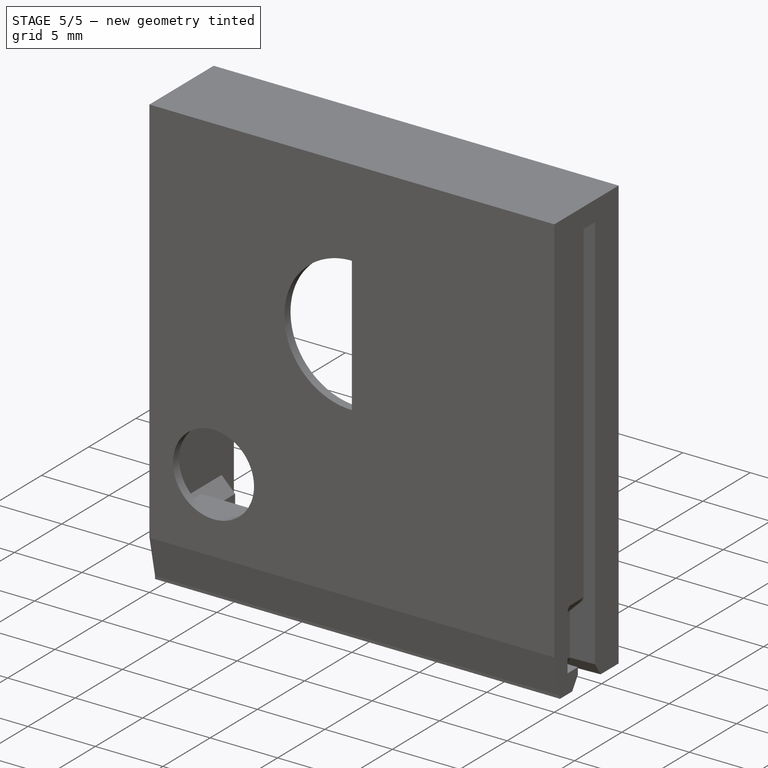
[diagram: stage 5 of 5 — iso view after this stage's code; geometry added in this stage tinted green]
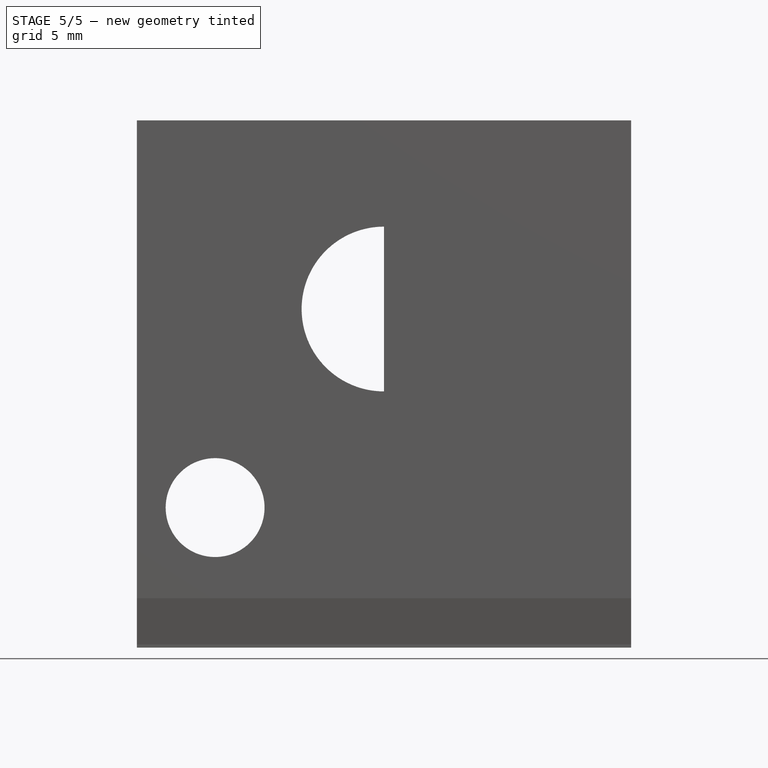
[diagram: stage 5 of 5 — front view after this stage's code; geometry added in this stage tinted green]
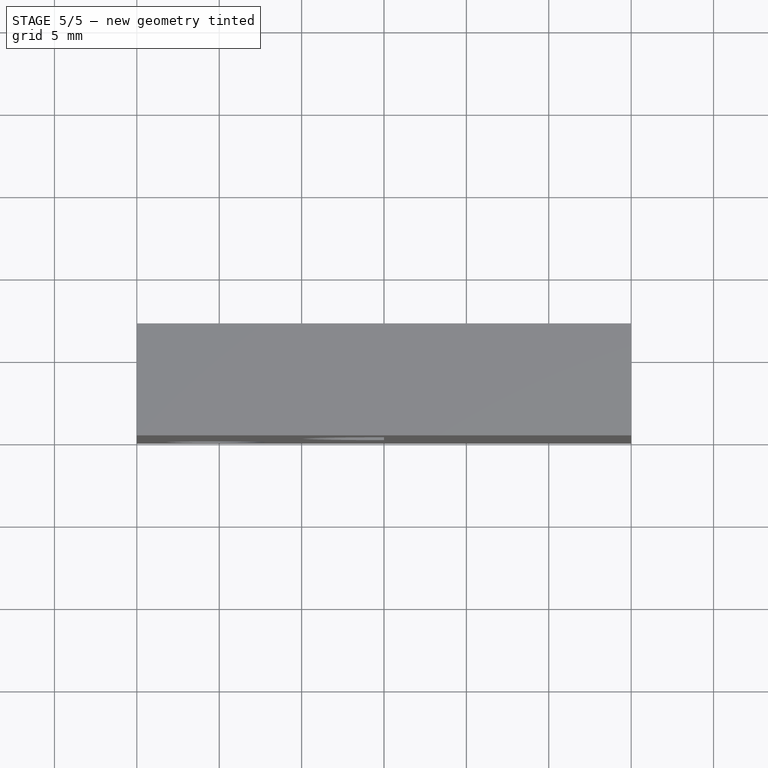
[diagram: stage 5 of 5 — top view after this stage's code; geometry added in this stage tinted green]
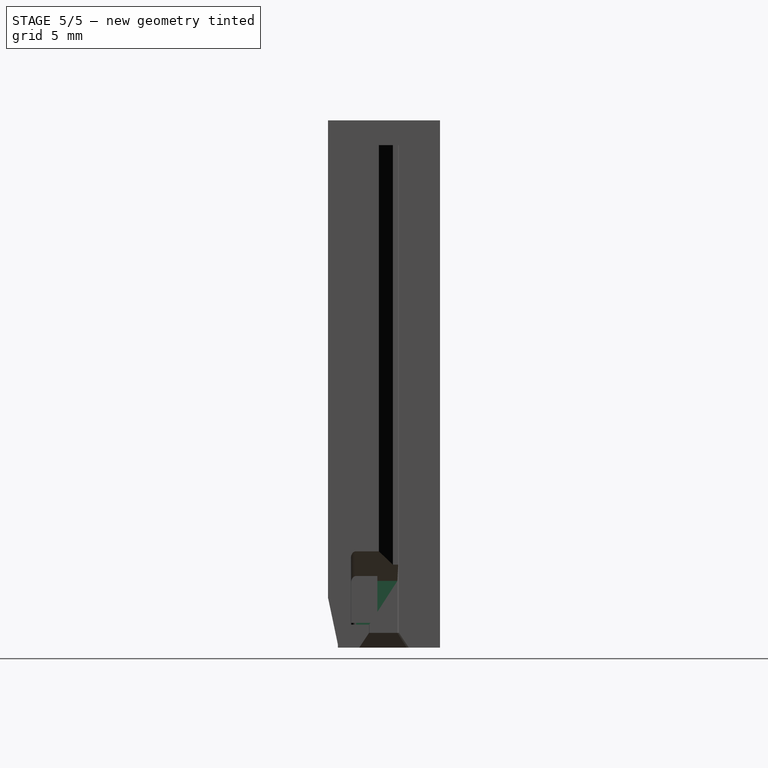
[diagram: stage 5 of 5 — right view after this stage's code; geometry added in this stage tinted green]
FEATURE [Sketcher::SketchObject] Sketch007
  ArcFitTolerance = 1e-06
  AttachmentSupport = -> [YZ_Plane]
  ExternalGeometry = -> [Pocket003]
  FullyConstrained = true
  MakeInternals = false
  MapMode = 5
  Placement = pos=(0,0,0) rot=(0.57735,0.57735,0.57735;2.0944rad)
  sketch-geometry (8):
    g0: LineSegment StartX=0 StartY=0 StartZ=0 EndX=6.8 EndY=0 EndZ=0
    g1: LineSegment StartX=6.8 StartY=0 StartZ=0 EndX=6.8 EndY=1.5 EndZ=0
    g2: LineSegment StartX=6.8 StartY=1.5 StartZ=0 EndX=0 EndY=1.5 EndZ=0
    g3: LineSegment StartX=0 StartY=1.5 StartZ=0 EndX=0 EndY=0 EndZ=0
    g4: LineSegment StartX=6.8 StartY=32 StartZ=0 EndX=0 EndY=32 EndZ=0
    g5: LineSegment StartX=0 StartY=32 StartZ=0 EndX=0 EndY=30.8 EndZ=0
    g6: LineSegment StartX=0 StartY=30.8 StartZ=0 EndX=6.8 EndY=30.8 EndZ=0
    g7: LineSegment StartX=6.8 StartY=30.8 StartZ=0 EndX=6.8 EndY=32 EndZ=0
  constraints (22):
    c: Coincident(g0,g1)
    c: Coincident(g1,g2)
    c: Coincident(g2,g3)
    c: Coincident(g3,g0)
    c: Horizontal(g0)
    c: Horizontal(g2)
    c: Vertical(g1)
    c: Vertical(g3)
    c: Coincident(g0,g-1)
    c: PointOnObject(g1,g-3)
    c: Coincident(g4,g5)
    c: Coincident(g5,g6)
    c: Coincident(g6,g7)
    c: Coincident(g7,g4)
    c: Horizontal(g4)
    c: Horizontal(g6)
    c: Vertical(g5)
    c: Vertical(g7)
    c: Coincident(g4,g-3)
    c: PointOnObject(g5,g-2)
    c: DistanceY(g5,g5) = 1.2
    c: DistanceY(g1,g1) = 1.5
FEATURE [PartDesign::Pad] Pad002
  BaseFeature = -> Pocket003
  Direction = (1,0,0)
  Length = 11
  Length2 = 10
  Profile = -> Sketch007
  ReferenceAxis = -> Sketch007 [N_Axis]
  Suppressed = false
  Type = 3
  UpToFace = -> Pocket003 [Face35]
FEATURE [PartDesign::Pad] Pad003
  BaseFeature = -> Pad002
  Direction = (1,0,0)
  Length = 10
  Length2 = 10
  Profile = -> Pad002 [Face57,Face50]
  Suppressed = false
  Type = 3
  UpToFace = -> Pad002 [Face31]
FEATURE [Sketcher::SketchObject] Sketch008
  ArcFitTolerance = 1e-06
  AttachmentSupport = -> [YZ_Plane]
  FullyConstrained = false
  MakeInternals = false
  MapMode = 5
  Placement = pos=(0,0,0) rot=(0.57735,0.57735,0.57735;2.0944rad)
  sketch-geometry (4):
    g0: LineSegment StartX=0 StartY=-0.059864 StartZ=0 EndX=0.65 EndY=-0.059864 EndZ=0
    g1: LineSegment StartX=0.65 StartY=-0.059864 StartZ=0 EndX=0.65 EndY=3.19014 EndZ=0
    g2: LineSegment StartX=0.65 StartY=3.19014 StartZ=0 EndX=0 EndY=3.19014 EndZ=0
    g3: LineSegment StartX=0 StartY=3.19014 StartZ=0 EndX=0 EndY=-0.059864 EndZ=0
  constraints (11):
    c: Coincident(g0,g1)
    c: Coincident(g1,g2)
    c: Coincident(g2,g3)
    c: Coincident(g3,g0)
    c: Horizontal(g0)
    c: Horizontal(g2)
    c: Vertical(g1)
    c: Vertical(g3)
    c: PointOnObject(g0,g-2)
    c: DistanceX(g2,g2) = 0.65
    c: DistanceY(g1,g1) = 3.25
FEATURE [PartDesign::Pad] Pad004
  BaseFeature = -> Pad003
  Direction = (0,1,0)
  Length = 0.5
  Length2 = 10
  Profile = -> Pad003 [Face52]
  Suppressed = false
  Type = 0
FEATURE [PartDesign::Pocket] Pocket004
  BaseFeature = -> Pad004
  Direction = (-1,0,0)
  Length = 5
  Length2 = 5
  Midplane = true
  Profile = -> Sketch008
  ReferenceAxis = -> Sketch008 [N_Axis]
  Suppressed = false
  Type = 1
FEATURE [Sketcher::SketchObject] Sketch017
  ArcFitTolerance = 1e-06
  AttachmentSupport = -> [Chamfer002]
  ExternalGeometry = -> [Chamfer002]
  FullyConstrained = true
  MakeInternals = false
  MapMode = 5
  Placement = pos=(13.5,0,0) rot=(0.57735,-0.57735,-0.57735;2.0944rad)
  sketch-geometry (4):
    g0: LineSegment StartX=-6.8 StartY=30.5 StartZ=0 EndX=-5.5 EndY=31.2506 EndZ=0
    g1: LineSegment StartX=-6.8 StartY=30.5 StartZ=0 EndX=-6.8 EndY=26.65 EndZ=0
    g2: LineSegment StartX=-6.8 StartY=26.65 StartZ=0 EndX=-5.5 EndY=26.65 EndZ=0
    g3: LineSegment StartX=-5.5 StartY=31.2506 StartZ=0 EndX=-5.5 EndY=26.65 EndZ=0
  constraints (10):
    c: Coincident(g0,g-3)
    c: Coincident(g1,g0)
    c: Vertical(g1)
    c: Coincident(g2,g1)
    c: Horizontal(g2)
    c: Coincident(g3,g0)
    c: Coincident(g3,g2)
    c: Coincident(g2,g-4)
    c: Vertical(g3)
    c: Angle(g1,g0) = 2.0944
FEATURE [PartDesign::Pocket] Pocket009
  BaseFeature = -> Chamfer002
  Direction = (1,0,0)
  Length = 0
  Length2 = 5
  Profile = -> Sketch017
  ReferenceAxis = -> Sketch017 [N_Axis]
  Refine = true
  Reversed = true
  Suppressed = false
  Type = 3
  UpToFace = -> Chamfer002 [Face36]
FEATURE [PartDesign::Fillet] Fillet004
  Base = -> Pocket009 [Edge138]
  BaseFeature = -> Pocket009
  Radius = 0.2
  Refine = true
  SupportTransform = false
  Suppressed = false
  UseAllEdges = false
FEATURE [PartDesign::Body] Body
  AllowCompound = false
  Group = -> [Sketch,Pad,Sketch001,Pad001,DatumPlane,Sketch002,Sketch003,Pocket,DatumPlane001,Sketch004,Pocket001,Sketch005,Pocket002,Chamfer,Sketch006,Pocket003,Sketch007,Pad002,Pad003,Pad004,Sketch008,Pocket004,Fillet,Fillet001,Sketch009,Pad005,Sketch010,Pad006,Fillet002,Chamfer001,Fillet003,Pocket006,Sketch011,Pocket005,Sketch012,Sketch013,Pocket007,Sketch014,Pad007,Sketch015,Pad008,Mirrored,Sketch016,+5 more]
  Origin = -> Origin
  Placement = pos=(0,0,-32) rot=(0,0,1;0rad)
  Tip = -> Fillet004
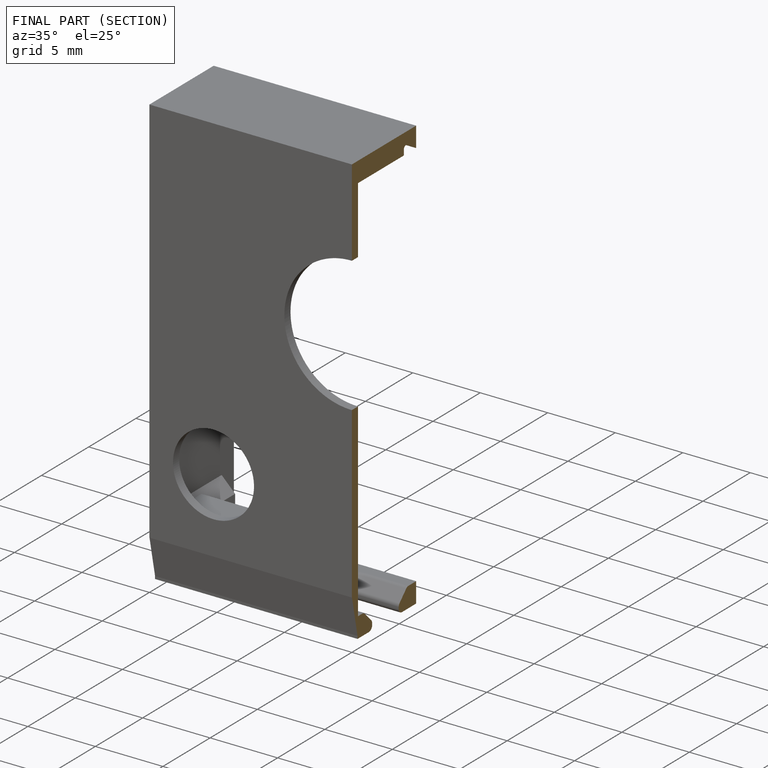
[diagram: finished part — half-section view (interior)]
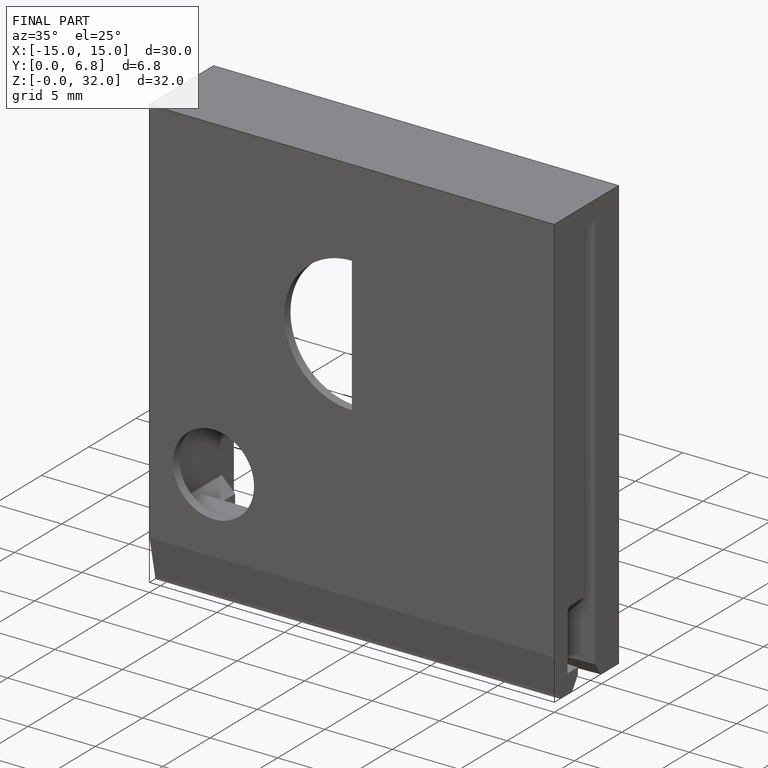
[diagram: finished part — iso view with bounding-box wireframe]
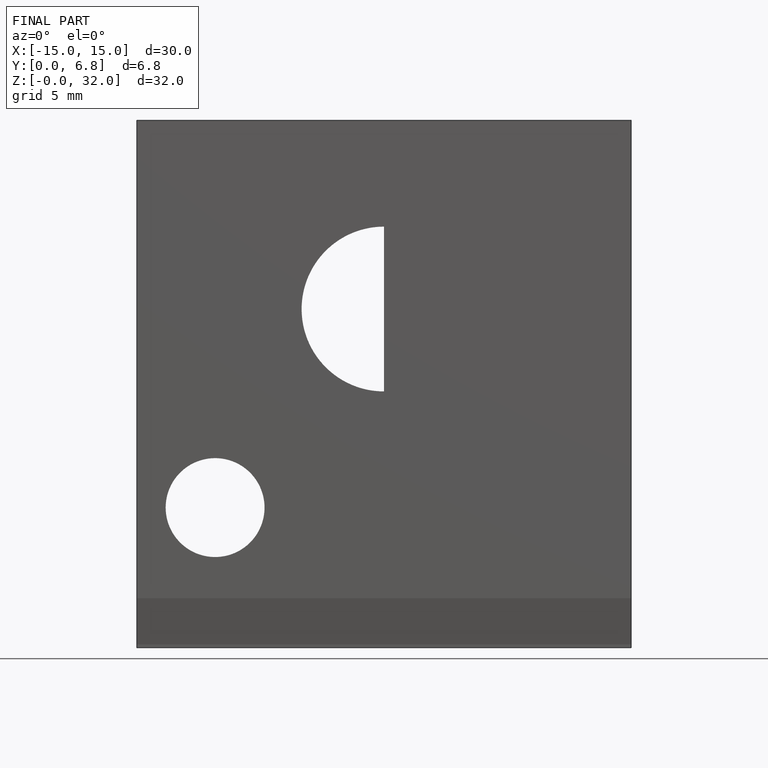
[diagram: finished part — front view with bounding-box wireframe]
